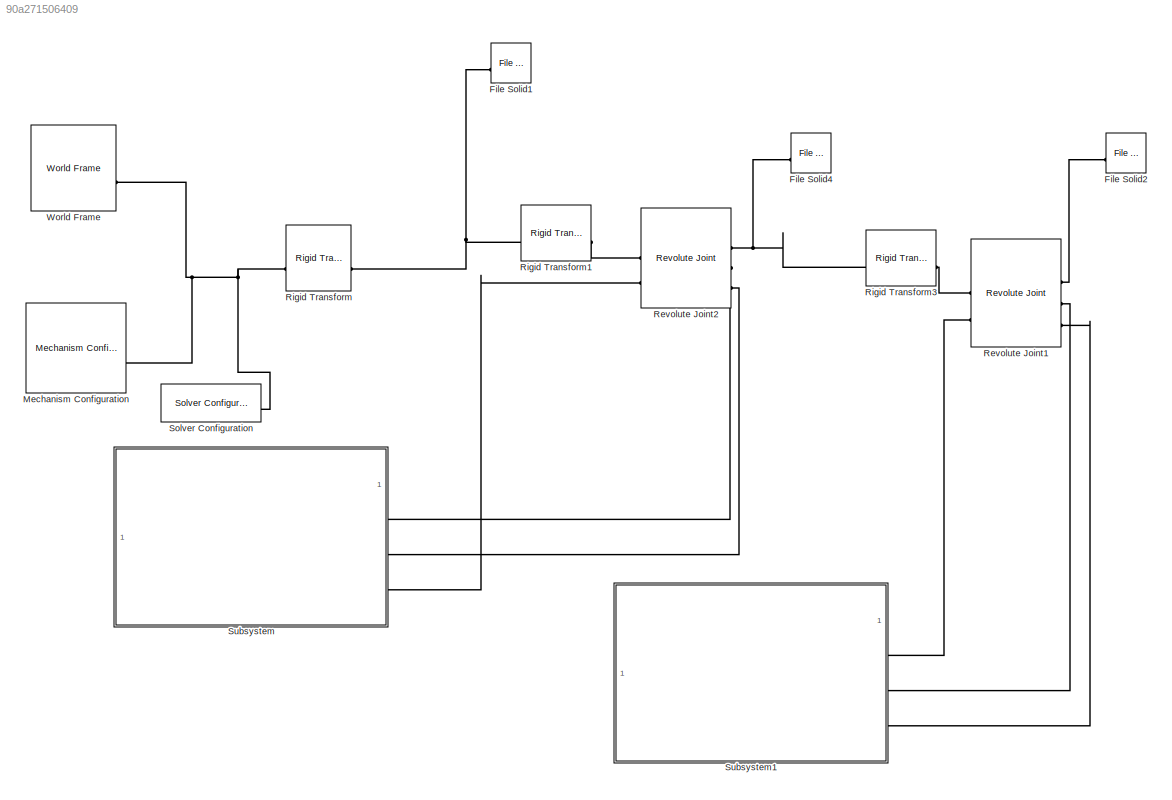
MODEL slx_90a271506409
KIND model
CONFIG AbsTol = auto
CONFIG EnableMultiTasking = off
CONFIG FixedStep = auto
CONFIG MaxStep = auto
CONFIG MinStep = auto
CONFIG RelTol = 1e-3
CONFIG SampleTimeConstraint = Unconstrained
CONFIG SolverName = VariableStepAuto
CONFIG StartTime = 0.0
CONFIG StopTime = 10
BLOCK [Reference] File Solid1  REF=sm_lib/Body Elements/File Solid
  LibrarySourceBlock = simscape/File Solid4
  NameLocation = top
  SourceBlock = sm_lib/Body Elements/File Solid
  SourceType = File Solid
BLOCK [Reference] File Solid2  REF=sm_lib/Body Elements/File Solid
  LibrarySourceBlock = simscape/File Solid4
  NameLocation = top
  SourceBlock = sm_lib/Body Elements/File Solid
  SourceType = File Solid
BLOCK [Reference] File Solid4  REF=sm_lib/Body Elements/File Solid
  LibrarySourceBlock = simscape/File Solid3
  NameLocation = top
  SourceBlock = sm_lib/Body Elements/File Solid
  SourceType = File Solid
BLOCK [Reference] Mechanism Configuration  REF=sm_lib/Utilities/Mechanism
Configuration
  SourceBlock = sm_lib/Utilities/Mechanism\nConfiguration
  SourceType = Mechanism\nConfiguration
BLOCK [Reference] Revolute Joint1  REF=sm_lib/Joints/Revolute Joint
  LibrarySourceBlock = simscape/Revolute Joint2
  SourceBlock = sm_lib/Joints/Revolute Joint
  SourceType = Revolute Joint
BLOCK [Reference] Revolute Joint2  REF=sm_lib/Joints/Revolute Joint
  SourceBlock = sm_lib/Joints/Revolute Joint
  SourceType = Revolute Joint
BLOCK [Reference] Rigid Transform  REF=sm_lib/Frames and
Transforms/Rigid
Transform
  SourceBlock = sm_lib/Frames and\nTransforms/Rigid\nTransform
  SourceType = Rigid\nTransform
BLOCK [Reference] Rigid Transform1  REF=sm_lib/Frames and
Transforms/Rigid
Transform
  LibrarySourceBlock = simscape/Rigid\nTransform
  SourceBlock = sm_lib/Frames and\nTransforms/Rigid\nTransform
  SourceType = Rigid\nTransform
BLOCK [Reference] Rigid Transform3  REF=sm_lib/Frames and
Transforms/Rigid
Transform
  LibrarySourceBlock = simscape/Rigid\nTransform1
  SourceBlock = sm_lib/Frames and\nTransforms/Rigid\nTransform
  SourceType = Rigid\nTransform
BLOCK [Reference] Solver Configuration  REF=nesl_utility/Solver
Configuration
  SourceBlock = nesl_utility/Solver\nConfiguration
  SourceType = Solver\nConfiguration
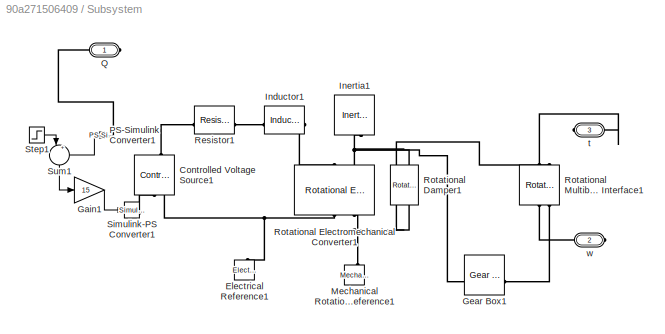
BLOCK [SubSystem] Subsystem
BLOCK [Reference] Subsystem/Controlled Voltage Source1  REF=fl_lib/Electrical/Electrical Sources/Controlled Voltage
Source
  NameLocation = right
  SourceBlock = fl_lib/Electrical/Electrical Sources/Controlled Voltage\nSource
  SourceType = Controlled Voltage\nSource
BLOCK [Reference] Subsystem/Electrical Reference1  REF=fl_lib/Electrical/Electrical Elements/Electrical Reference
  NameLocation = right
  SourceBlock = fl_lib/Electrical/Electrical Elements/Electrical Reference
  SourceType = Electrical Reference
BLOCK [Gain] Subsystem/Gain1
  Gain = 15
BLOCK [Reference] Subsystem/Gear Box1  REF=fl_lib/Mechanical/Mechanisms/Gear Box
  SourceBlock = fl_lib/Mechanical/Mechanisms/Gear Box
  SourceType = Gear Box
BLOCK [Reference] Subsystem/Inductor1  REF=fl_lib/Electrical/Electrical Elements/Inductor
  SourceBlock = fl_lib/Electrical/Electrical Elements/Inductor
  SourceType = Inductor
BLOCK [Reference] Subsystem/Inertia1  REF=fl_lib/Mechanical/Rotational Elements/Inertia
  NameLocation = left
  SourceBlock = fl_lib/Mechanical/Rotational Elements/Inertia
  SourceType = Inertia
BLOCK [Reference] Subsystem/Mechanical Rotational Reference1  REF=fl_lib/Mechanical/Rotational Elements/Mechanical
Rotational Reference
  NameLocation = right
  SourceBlock = fl_lib/Mechanical/Rotational Elements/Mechanical\nRotational Reference
  SourceType = Mechanical\nRotational Reference
BLOCK [Reference] Subsystem/PS-Simulink Converter1  REF=nesl_utility/PS-Simulink
Converter
  NameLocation = top
  SourceBlock = nesl_utility/PS-Simulink\nConverter
  SourceType = PS-Simulink\nConverter
BLOCK [PMIOPort] Subsystem/Q
  Side = Right
BLOCK [Reference] Subsystem/Resistor1  REF=fl_lib/Electrical/Electrical Elements/Resistor
  SourceBlock = fl_lib/Electrical/Electrical Elements/Resistor
  SourceType = Resistor
BLOCK [Reference] Subsystem/Rotational Damper1  REF=fl_lib/Mechanical/Rotational Elements/Rotational Damper
  NameLocation = left
  SourceBlock = fl_lib/Mechanical/Rotational Elements/Rotational Damper
  SourceType = Rotational Damper
BLOCK [Reference] Subsystem/Rotational Electromechanical Converter1  REF=fl_lib/Electrical/Electrical Elements/Rotational
Electromechanical
Converter
  NameLocation = right
  SourceBlock = fl_lib/Electrical/Electrical Elements/Rotational\nElectromechanical\nConverter
  SourceType = Rotational\nElectromechanical\nConverter
BLOCK [Reference] Subsystem/Rotational Multibody Interface1  REF=fl_lib/Mechanical/Multibody Interfaces/Rotational Multibody
Interface
  NameLocation = left
  SourceBlock = fl_lib/Mechanical/Multibody Interfaces/Rotational Multibody\nInterface
  SourceType = Rotational Multibody\nInterface
BLOCK [Reference] Subsystem/Simulink-PS Converter1  REF=nesl_utility/Simulink-PS
Converter
  SourceBlock = nesl_utility/Simulink-PS\nConverter
  SourceType = Simulink-PS\nConverter
BLOCK [Step] Subsystem/Step1
  After = -pi
  SampleTime = 0
  Time = 10
BLOCK [Sum] Subsystem/Sum1
  Inputs = |+-
  NameLocation = left
BLOCK [PMIOPort] Subsystem/t
  Port = 3
  Side = Right
BLOCK [PMIOPort] Subsystem/w
  Port = 2
  Side = Right
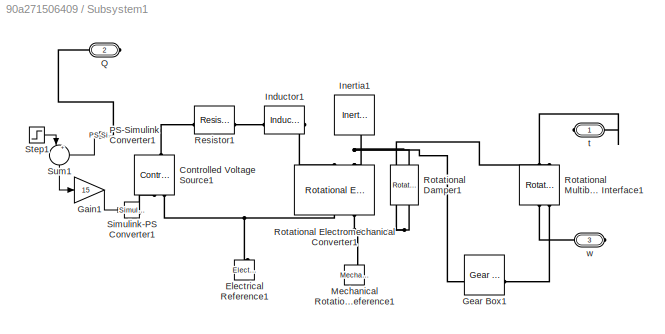
BLOCK [SubSystem] Subsystem1
BLOCK [Reference] Subsystem1/Controlled Voltage Source1  REF=fl_lib/Electrical/Electrical Sources/Controlled Voltage
Source
  LibrarySourceBlock = simscape/Subsystem/Controlled Voltage\nSource1
  NameLocation = right
  SourceBlock = fl_lib/Electrical/Electrical Sources/Controlled Voltage\nSource
  SourceType = Controlled Voltage\nSource
BLOCK [Reference] Subsystem1/Electrical Reference1  REF=fl_lib/Electrical/Electrical Elements/Electrical Reference
  LibrarySourceBlock = simscape/Subsystem/Electrical Reference1
  NameLocation = right
  SourceBlock = fl_lib/Electrical/Electrical Elements/Electrical Reference
  SourceType = Electrical Reference
BLOCK [Gain] Subsystem1/Gain1
  Gain = 15
BLOCK [Reference] Subsystem1/Gear Box1  REF=fl_lib/Mechanical/Mechanisms/Gear Box
  LibrarySourceBlock = simscape/Subsystem/Gear Box1
  SourceBlock = fl_lib/Mechanical/Mechanisms/Gear Box
  SourceType = Gear Box
BLOCK [Reference] Subsystem1/Inductor1  REF=fl_lib/Electrical/Electrical Elements/Inductor
  LibrarySourceBlock = simscape/Subsystem/Inductor1
  SourceBlock = fl_lib/Electrical/Electrical Elements/Inductor
  SourceType = Inductor
BLOCK [Reference] Subsystem1/Inertia1  REF=fl_lib/Mechanical/Rotational Elements/Inertia
  LibrarySourceBlock = simscape/Subsystem/Inertia1
  NameLocation = left
  SourceBlock = fl_lib/Mechanical/Rotational Elements/Inertia
  SourceType = Inertia
BLOCK [Reference] Subsystem1/Mechanical Rotational Reference1  REF=fl_lib/Mechanical/Rotational Elements/Mechanical
Rotational Reference
  LibrarySourceBlock = simscape/Subsystem/Mechanical\nRotational Reference1
  NameLocation = right
  SourceBlock = fl_lib/Mechanical/Rotational Elements/Mechanical\nRotational Reference
  SourceType = Mechanical\nRotational Reference
BLOCK [Reference] Subsystem1/PS-Simulink Converter1  REF=nesl_utility/PS-Simulink
Converter
  LibrarySourceBlock = simscape/Subsystem/PS-Simulink\nConverter1
  NameLocation = top
  SourceBlock = nesl_utility/PS-Simulink\nConverter
  SourceType = PS-Simulink\nConverter
BLOCK [PMIOPort] Subsystem1/Q
  Port = 2
  Side = Right
BLOCK [Reference] Subsystem1/Resistor1  REF=fl_lib/Electrical/Electrical Elements/Resistor
  LibrarySourceBlock = simscape/Subsystem/Resistor1
  SourceBlock = fl_lib/Electrical/Electrical Elements/Resistor
  SourceType = Resistor
BLOCK [Reference] Subsystem1/Rotational Damper1  REF=fl_lib/Mechanical/Rotational Elements/Rotational Damper
  LibrarySourceBlock = simscape/Subsystem/Rotational Damper1
  NameLocation = left
  SourceBlock = fl_lib/Mechanical/Rotational Elements/Rotational Damper
  SourceType = Rotational Damper
BLOCK [Reference] Subsystem1/Rotational Electromechanical Converter1  REF=fl_lib/Electrical/Electrical Elements/Rotational
Electromechanical
Converter
  LibrarySourceBlock = simscape/Subsystem/Rotational\nElectromechanical\nConverter1
  NameLocation = right
  SourceBlock = fl_lib/Electrical/Electrical Elements/Rotational\nElectromechanical\nConverter
  SourceType = Rotational\nElectromechanical\nConverter
BLOCK [Reference] Subsystem1/Rotational Multibody Interface1  REF=fl_lib/Mechanical/Multibody Interfaces/Rotational Multibody
Interface
  LibrarySourceBlock = simscape/Subsystem/Rotational Multibody\nInterface1
  NameLocation = left
  SourceBlock = fl_lib/Mechanical/Multibody Interfaces/Rotational Multibody\nInterface
  SourceType = Rotational Multibody\nInterface
BLOCK [Reference] Subsystem1/Simulink-PS Converter1  REF=nesl_utility/Simulink-PS
Converter
  LibrarySourceBlock = simscape/Subsystem/Simulink-PS\nConverter1
  SourceBlock = nesl_utility/Simulink-PS\nConverter
  SourceType = Simulink-PS\nConverter
BLOCK [Step] Subsystem1/Step1
  After = -pi
  SampleTime = 0
  Time = 10
BLOCK [Sum] Subsystem1/Sum1
  Inputs = |+-
  NameLocation = left
BLOCK [PMIOPort] Subsystem1/t
  Side = Right
BLOCK [PMIOPort] Subsystem1/w
  Port = 3
  Side = Right
BLOCK [Reference] World Frame  REF=sm_lib/Frames and
Transforms/World Frame
  SourceBlock = sm_lib/Frames and\nTransforms/World Frame
  SourceType = World Frame
LINE Subsystem/Gain1:1 -> Subsystem/Simulink-PS Converter1:1
LINE Subsystem/PS-Simulink Converter1:1 -> Subsystem/Sum1:2
LINE Subsystem/Step1:1 -> Subsystem/Sum1:1
LINE Subsystem/Sum1:1 -> Subsystem/Gain1:1
LINE Subsystem1/Gain1:1 -> Subsystem1/Simulink-PS Converter1:1
LINE Subsystem1/PS-Simulink Converter1:1 -> Subsystem1/Sum1:2
LINE Subsystem1/Step1:1 -> Subsystem1/Sum1:1
LINE Subsystem1/Sum1:1 -> Subsystem1/Gain1:1
PNET net1: File Solid1:RConn1 -- Rigid Transform1:LConn1 -- Rigid Transform:RConn1
PLINE File Solid2:RConn1 -- Revolute Joint1:RConn1
PNET net2: File Solid4:RConn1 -- Revolute Joint2:RConn1 -- Rigid Transform3:LConn1
PNET net3: Mechanism Configuration:RConn1 -- Rigid Transform:LConn1 -- Solver Configuration:RConn1 -- World Frame:RConn1
PLINE Revolute Joint1:LConn1 -- Rigid Transform3:RConn1
PLINE Revolute Joint1:LConn2 -- Subsystem1:RConn1
PLINE Revolute Joint1:RConn2 -- Subsystem1:RConn2
PLINE Revolute Joint1:RConn3 -- Subsystem1:RConn3
PLINE Revolute Joint2:LConn1 -- Rigid Transform1:RConn1
PLINE Revolute Joint2:LConn2 -- Subsystem:RConn3
PLINE Revolute Joint2:RConn2 -- Subsystem:RConn1
PLINE Revolute Joint2:RConn3 -- Subsystem:RConn2
PLINE Subsystem/Controlled Voltage Source1:LConn1 -- Subsystem/Resistor1:LConn1
PLINE Subsystem/Controlled Voltage Source1:RConn1 -- Subsystem/Simulink-PS Converter1:RConn1
PNET net4: Subsystem/Controlled Voltage Source1:RConn2 -- Subsystem/Electrical Reference1:LConn1 -- Subsystem/Rotational Electromechanical Converter1:RConn1
PNET net5: Subsystem/Gear Box1:LConn1 -- Subsystem/Inertia1:LConn1 -- Subsystem/Rotational Damper1:LConn1 -- Subsystem/Rotational Electromechanical Converter1:LConn2
PLINE Subsystem/Gear Box1:RConn1 -- Subsystem/Rotational Multibody Interface1:RConn2
PLINE Subsystem/Inductor1:LConn1 -- Subsystem/Resistor1:RConn1
PLINE Subsystem/Inductor1:RConn1 -- Subsystem/Rotational Electromechanical Converter1:LConn1
PNET net6: Subsystem/Mechanical Rotational Reference1:LConn1 -- Subsystem/Rotational Damper1:RConn1 -- Subsystem/Rotational Electromechanical Converter1:RConn2 -- Subsystem/Rotational Multibody Interface1:LConn2
PLINE Subsystem/PS-Simulink Converter1:LConn1 -- Subsystem/Q:RConn1
PLINE Subsystem/Rotational Multibody Interface1:LConn1 -- Subsystem/t:RConn1
PLINE Subsystem/Rotational Multibody Interface1:RConn1 -- Subsystem/w:RConn1
PLINE Subsystem1/Controlled Voltage Source1:LConn1 -- Subsystem1/Resistor1:LConn1
PLINE Subsystem1/Controlled Voltage Source1:RConn1 -- Subsystem1/Simulink-PS Converter1:RConn1
PNET net7: Subsystem1/Controlled Voltage Source1:RConn2 -- Subsystem1/Electrical Reference1:LConn1 -- Subsystem1/Rotational Electromechanical Converter1:RConn1
PNET net8: Subsystem1/Gear Box1:LConn1 -- Subsystem1/Inertia1:LConn1 -- Subsystem1/Rotational Damper1:LConn1 -- Subsystem1/Rotational Electromechanical Converter1:LConn2
PLINE Subsystem1/Gear Box1:RConn1 -- Subsystem1/Rotational Multibody Interface1:RConn2
PLINE Subsystem1/Inductor1:LConn1 -- Subsystem1/Resistor1:RConn1
PLINE Subsystem1/Inductor1:RConn1 -- Subsystem1/Rotational Electromechanical Converter1:LConn1
PNET net9: Subsystem1/Mechanical Rotational Reference1:LConn1 -- Subsystem1/Rotational Damper1:RConn1 -- Subsystem1/Rotational Electromechanical Converter1:RConn2 -- Subsystem1/Rotational Multibody Interface1:LConn2
PLINE Subsystem1/PS-Simulink Converter1:LConn1 -- Subsystem1/Q:RConn1
PLINE Subsystem1/Rotational Multibody Interface1:LConn1 -- Subsystem1/t:RConn1
PLINE Subsystem1/Rotational Multibody Interface1:RConn1 -- Subsystem1/w:RConn1
note: PNET lines group multi-terminal physical nets as a canonical sorted terminal list (undirected conserving connections); 2-terminal nets keep the pairwise PLINE form
